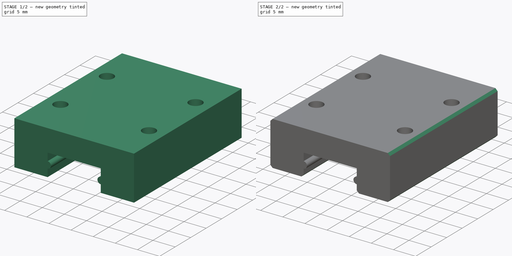
[diagram: build sequence overview — one tinted view per stage of 2, left to right]
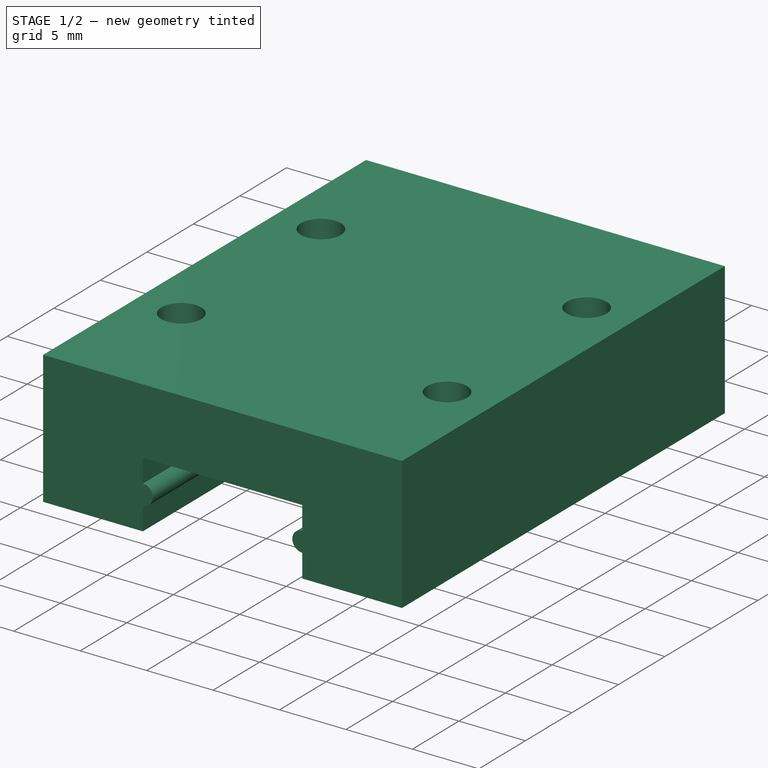
[diagram: stage 1 of 2 — iso view after this stage's code; geometry added in this stage tinted green]
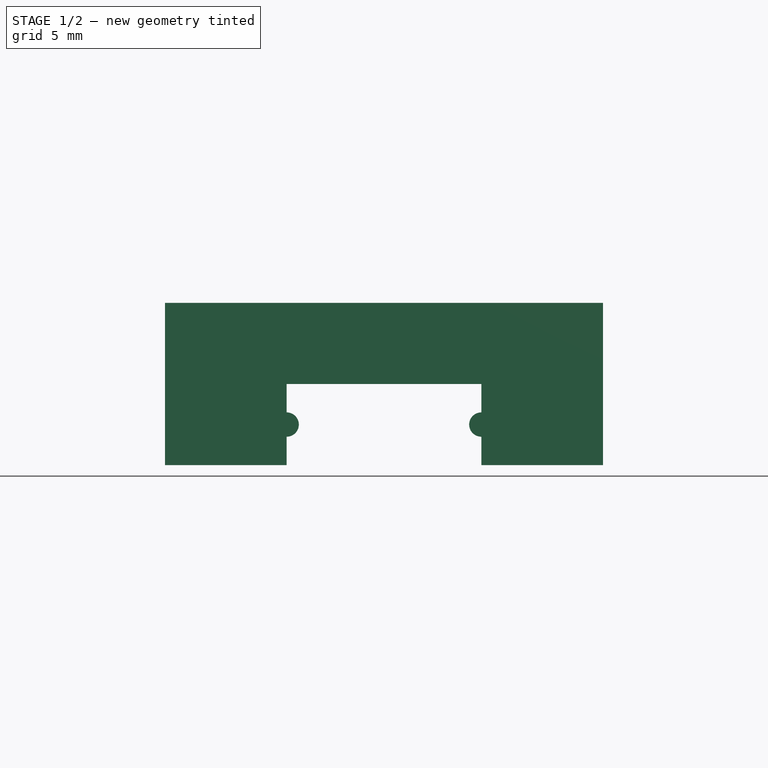
[diagram: stage 1 of 2 — front view after this stage's code; geometry added in this stage tinted green]
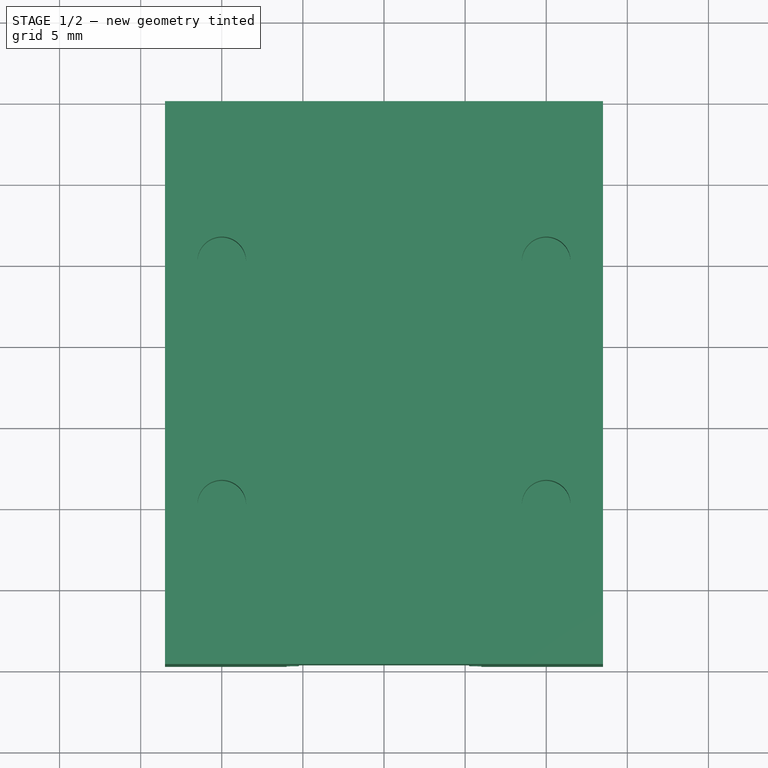
[diagram: stage 1 of 2 — top view after this stage's code; geometry added in this stage tinted green]
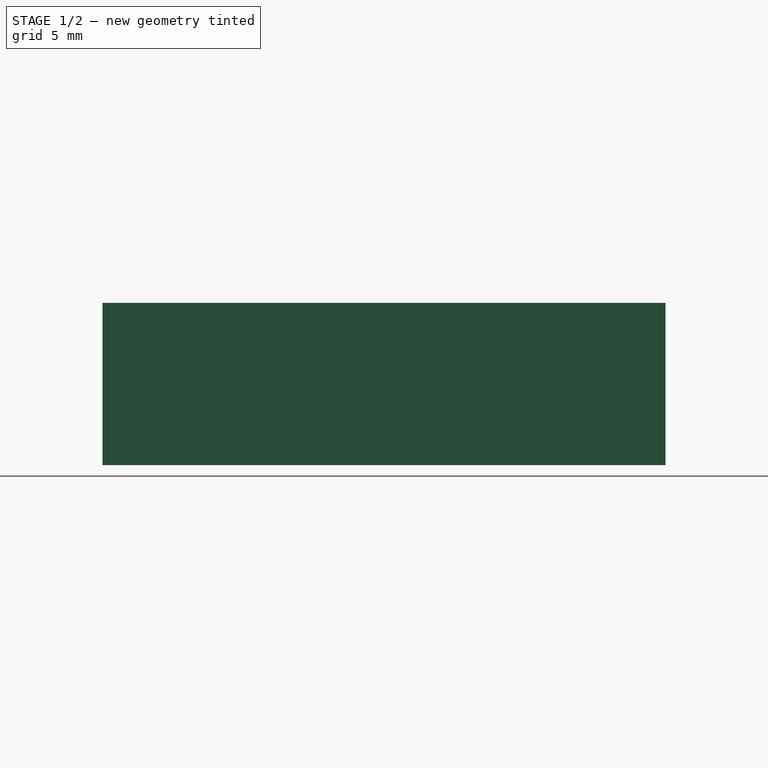
[diagram: stage 1 of 2 — right view after this stage's code; geometry added in this stage tinted green]
FCSTD DOCUMENT  (FreeCAD 0.19R)
Label: LinearSlide-MGN12C
Comment: Dimensions taken from http://motioncontrolsystems.hiwin.us/Asset/MG-Series-Catalog.pdf
License: Creative Commons Attribution
LicenseURL: http://creativecommons.org/licenses/by/3.0/
objects: Sketcher::SketchObject×2, Spreadsheet::Sheet×1, PartDesign::Pad×1, PartDesign::Pocket×1, PartDesign::Chamfer×1, PartDesign::Body×1
note: 9 computed .brp shape members not serialized (recipe doc carries the construction recipe); baked Part::Feature solids carry a one-line shape summary decoded from their .brp

FEATURE [Spreadsheet::Sheet] Spreadsheet  label="Dimensions"
  cells = A2=Taken from the datasheet at http://motioncontrolsystems.hiwin.us/Asset/MG-Series-Catalog.pdf; A3=H; B3(Assembly_H)=13; A4=H1; B4(Assembly_H1)=3; A5=HR; B5(Rail_HR)=8; A6=N; B6(Assembly_N)=7.5; A7=W; B7(Block_W)=27; A8=WR; B8(Rail_WR)=12; A9=B; B9(Block_B)=20; A10=B1; B10(Block_B1)=3.5; A11=L; B11(Block_L)=34.7; A12=L1; B12(Block_L1)=21.7; A13=C; B13(Block_C)=15; A14=BlockMountingHoleDiameter; B14(BlockMountingHoleDiameter)=3; A15=BlockMountingHoleDepth; B15(BlockMountingHoleDepth)=3.5; A16=BlockGuideDiameter; B16(BlockGuideDiameter)=1.5
FEATURE [Sketcher::SketchObject] Sketch  label="BlockCrossSection"
  FullyConstrained = true
  MapMode = 5
  Placement = pos=(0,0,0) rot=(1,0,0;1.5708rad)
  Support = -> [XZ_Plane]
  expr: Constraints[20] = <<Dimensions>>.Assembly_H1
  expr: Constraints[24] = <<Dimensions>>.Rail_HR
  expr: Constraints[32] = <<Dimensions>>.Rail_WR
  expr: Constraints[29] = <<Dimensions>>.BlockGuideDiameter
  expr: Constraints[21] = <<Dimensions>>.Block_W
  expr: Constraints[22] = <<Dimensions>>.BlockGuideDiameter
  expr: Constraints[23] = <<Dimensions>>.Assembly_H - <<Dimensions>>.Assembly_H1
  expr: Constraints[34] = (<<Dimensions>>.Rail_HR - <<Dimensions>>.Assembly_H1) / 2
  sketch-geometry (12):
    g0: LineSegment StartX=-13.5 StartY=3 StartZ=0 EndX=-13.5 EndY=13 EndZ=0
    g1: LineSegment StartX=-13.5 StartY=13 StartZ=0 EndX=13.5 EndY=13 EndZ=0
    g2: LineSegment StartX=13.5 StartY=13 StartZ=0 EndX=13.5 EndY=3 EndZ=0
    g3: LineSegment StartX=13.5 StartY=3 StartZ=0 EndX=6 EndY=3 EndZ=0
    g4: LineSegment StartX=6 StartY=3 StartZ=0 EndX=6 EndY=4.75 EndZ=0
    g5: LineSegment StartX=6 StartY=6.25 StartZ=0 EndX=6 EndY=8 EndZ=0
    g6: LineSegment StartX=6 StartY=8 StartZ=0 EndX=-6 EndY=8 EndZ=0
    g7: LineSegment StartX=-6 StartY=8 StartZ=0 EndX=-6 EndY=6.25 EndZ=0
    g8: LineSegment StartX=-6 StartY=4.75 StartZ=0 EndX=-6 EndY=3 EndZ=0
    g9: LineSegment StartX=-6 StartY=3 StartZ=0 EndX=-13.5 EndY=3 EndZ=0
    g10: ArcOfCircle CenterX=-6 CenterY=5.5 CenterZ=0 NormalX=0 NormalY=0 NormalZ=1 AngleXU=0 Radius=0.75 StartAngle=4.71239 EndAngle=7.85398
    g11: ArcOfCircle CenterX=6 CenterY=5.5 CenterZ=0 NormalX=0 NormalY=0 NormalZ=1 AngleXU=0 Radius=0.75 StartAngle=1.5708 EndAngle=4.71239
  constraints (35):
    c: Vertical(g0)
    c: Coincident(g0,g1)
    c: Horizontal(g1)
    c: Coincident(g1,g2)
    c: Vertical(g2)
    c: Coincident(g2,g3)
    c: Horizontal(g3)
    c: Coincident(g3,g4)
    c: Vertical(g4)
    c: Vertical(g5)
    c: Coincident(g5,g6)
    c: Horizontal(g6)
    c: Coincident(g6,g7)
    c: Vertical(g7)
    c: Coincident(g8,g9)
    c: Coincident(g9,g0)
    c: Vertical(g8)
    c: Coincident(g10,g7)
    c: Coincident(g10,g8)
    c: Coincident(g11,g4)
    c: DistanceY(g-1,g8) = 3
    c: DistanceX(g1,g1) = 27
    c: Diameter(g10) = 1.5
    c: DistanceY(g0,g0) = 10
    c: DistanceY(g-1,g6) = 8
    c: Vertical(g8,g7)
    c: Vertical(g10,g8)
    c: Coincident(g5,g11)
    c: Vertical(g11,g5)
    c: Diameter(g11) = 1.5
    c: Symmetric(g8,g3,g-2)
    c: Symmetric(g0,g2,g-2)
    c: DistanceX(g6,g6) = 12
    c: Symmetric(g10,g11,g-2)
    c: DistanceY(g8,g10) = 2.5
FEATURE [PartDesign::Pad] Pad
  Direction = (1,1,1)
  Length = 34.7
  Length2 = 100
  Placement = pos=(0,0,0) rot=(1,0,0;1.5708rad)
  Profile = -> Sketch
  Type = 0
  expr: Length = <<Dimensions>>.Block_L
FEATURE [Sketcher::SketchObject] Sketch001  label="MountingHoles"
  FullyConstrained = true
  MapMode = 5
  Placement = pos=(0,8.6e-15,13) rot=(0,0,1;3.14159rad)
  Support = -> [Pad]
  expr: Constraints[0] = <<Dimensions>>.BlockMountingHoleDiameter
  expr: Constraints[1] = <<Dimensions>>.BlockMountingHoleDiameter
  expr: Constraints[2] = <<Dimensions>>.BlockMountingHoleDiameter
  expr: Constraints[3] = <<Dimensions>>.BlockMountingHoleDiameter
  expr: Constraints[7] = <<Dimensions>>.Block_C
  expr: Constraints[8] = <<Dimensions>>.Block_B
  expr: Constraints[9] = (<<Dimensions>>.Block_L - <<Dimensions>>.Block_C) / 2
  sketch-geometry (4):
    g0: Circle CenterX=-10 CenterY=24.85 CenterZ=0 NormalX=0 NormalY=0 NormalZ=1 AngleXU=0 Radius=1.5
    g1: Circle CenterX=-10 CenterY=9.85 CenterZ=0 NormalX=0 NormalY=0 NormalZ=1 AngleXU=0 Radius=1.5
    g2: Circle CenterX=10 CenterY=9.85 CenterZ=0 NormalX=0 NormalY=0 NormalZ=1 AngleXU=0 Radius=1.5
    g3: Circle CenterX=10 CenterY=24.85 CenterZ=0 NormalX=0 NormalY=0 NormalZ=1 AngleXU=0 Radius=1.5
  constraints (10):
    c: Diameter(g3) = 3
    c: Diameter(g2) = 3
    c: Diameter(g1) = 3
    c: Diameter(g0) = 3
    c: Symmetric(g2,g1,g-2)
    c: Symmetric(g0,g3,g-2)
    c: Vertical(g2,g3)
    c: DistanceY(g2,g3) = 15
    c: DistanceX(g1,g2) = 20
    c: DistanceY(g-1,g2) = 9.85
FEATURE [PartDesign::Pocket] Pocket
  BaseFeature = -> Pad
  Length = 3.5
  Length2 = 100
  Placement = pos=(0,0,0) rot=(1,0,0;1.5708rad)
  Profile = -> Sketch001
  Type = 0
  expr: Length = <<Dimensions>>.BlockMountingHoleDepth
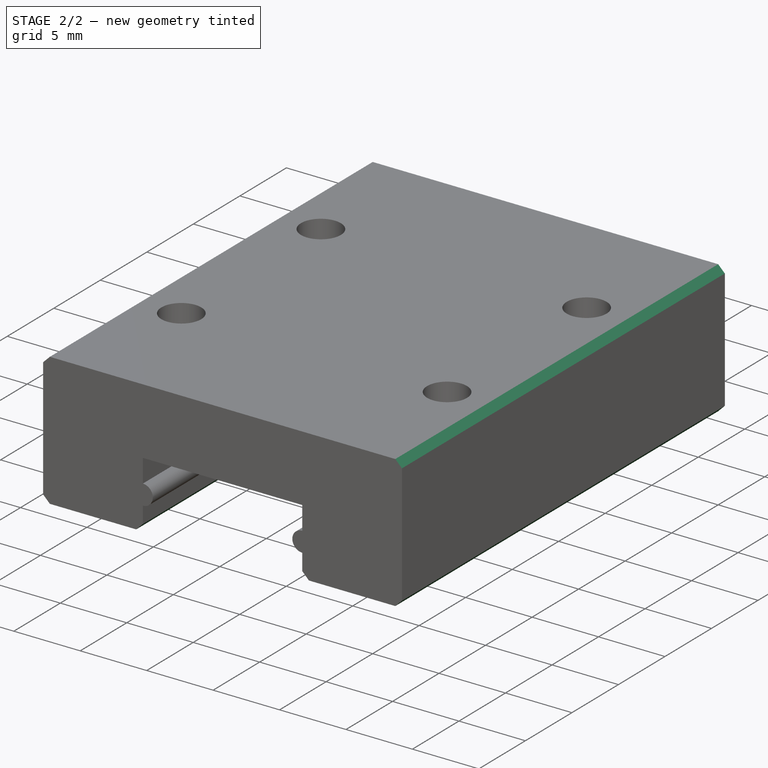
[diagram: stage 2 of 2 — iso view after this stage's code; geometry added in this stage tinted green]
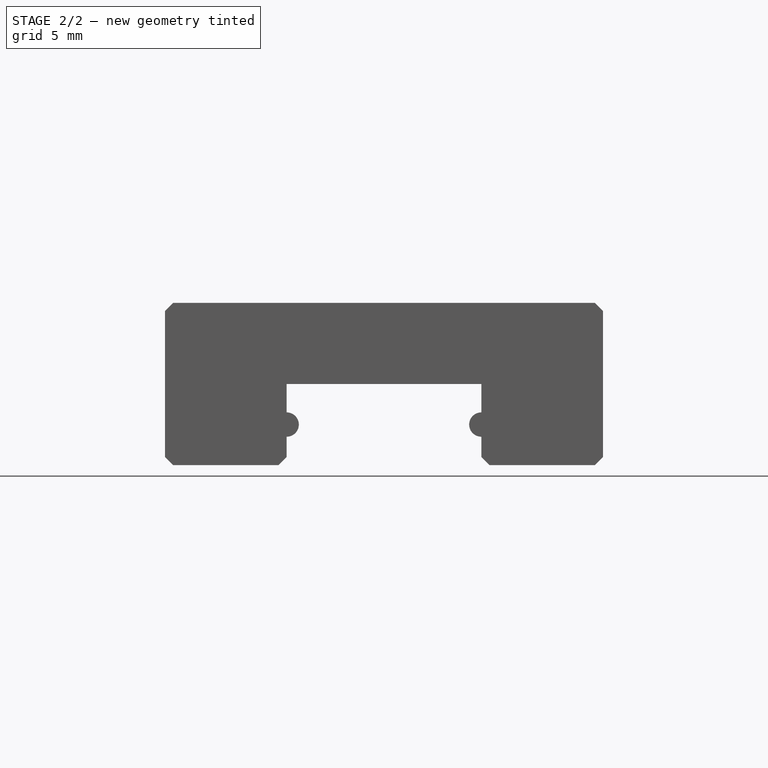
[diagram: stage 2 of 2 — front view after this stage's code; geometry added in this stage tinted green]
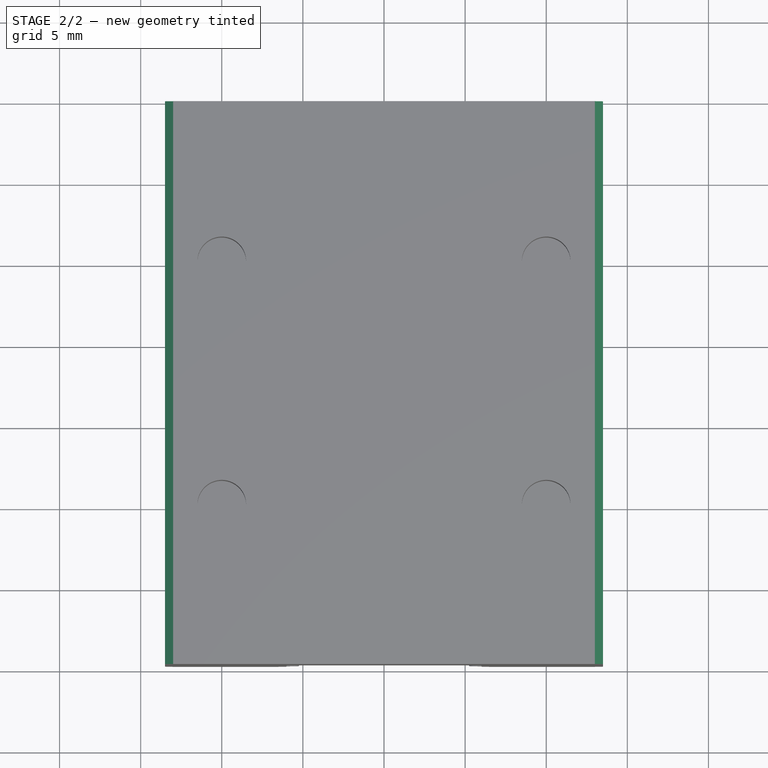
[diagram: stage 2 of 2 — top view after this stage's code; geometry added in this stage tinted green]
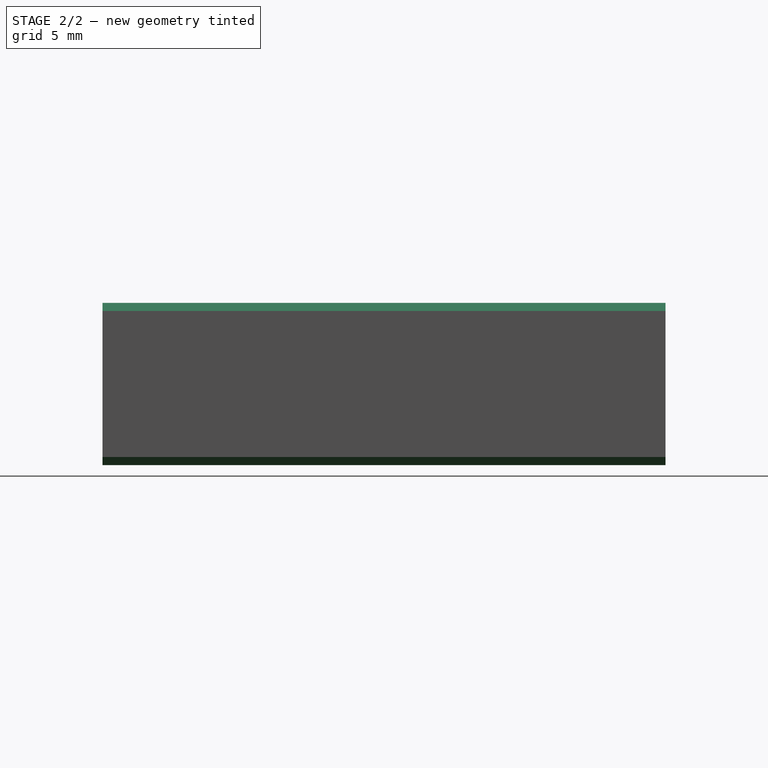
[diagram: stage 2 of 2 — right view after this stage's code; geometry added in this stage tinted green]
FEATURE [PartDesign::Chamfer] Chamfer
  Angle = 45
  Base = -> Pocket [Edge30,Edge31,Edge36,Edge8,Edge2,Edge37]
  BaseFeature = -> Pocket
  ChamferType = 0
  FlipDirection = false
  Placement = pos=(0,0,0) rot=(1,0,0;1.5708rad)
  Size = 0.5
  Size2 = 1
  SupportTransform = false
FEATURE [PartDesign::Body] Body
  Group = -> [Sketch,Pad,Sketch001,Pocket,Chamfer]
  Origin = -> Origin
  Tip = -> Chamfer
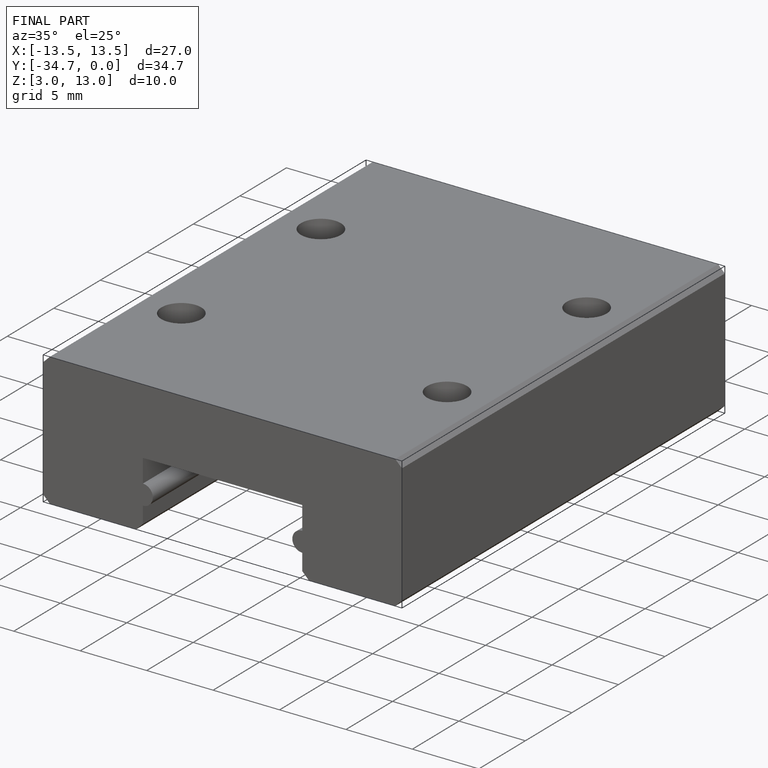
[diagram: finished part — iso view with bounding-box wireframe]
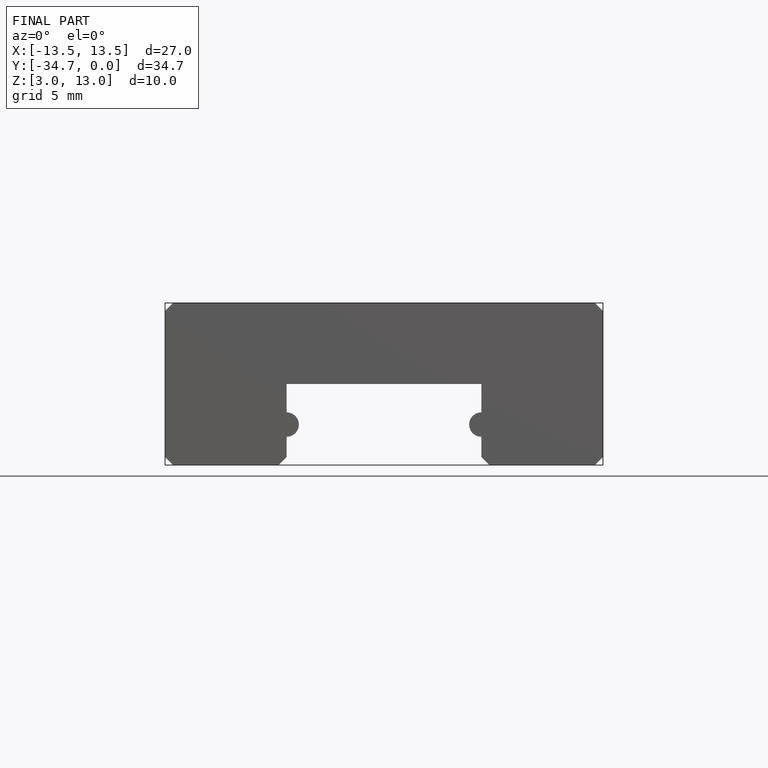
[diagram: finished part — front view with bounding-box wireframe]
